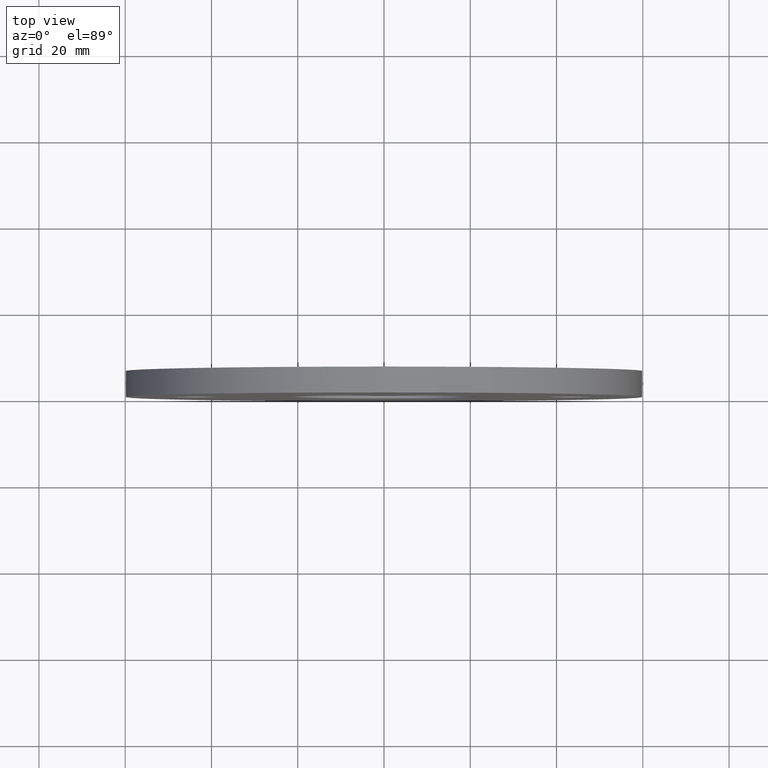
[diagram: clean part render]
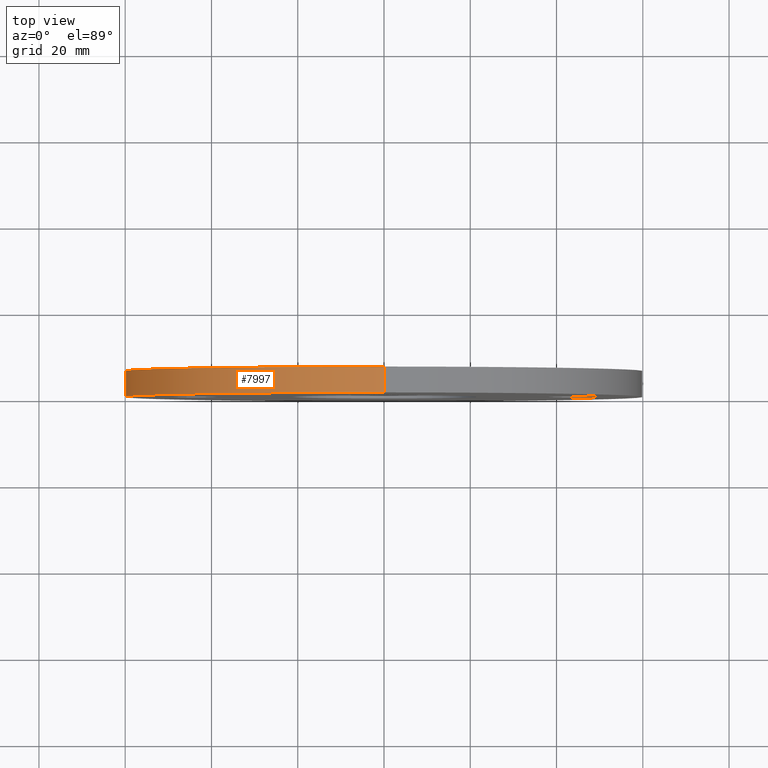
[diagram: same view with one face highlighted and labeled with its STEP entity id]
A machine part, top view. The second image highlights one B-rep face of the part: STEP entity #7997.
In plain terms, the highlighted cylindrical surface (partial cylindrical patch) has radius 60 mm, axis along (-0, -1, -0).
Its self-contained STEP definition (entity closure, byte-faithful):
#12 = CARTESIAN_POINT ( 'NONE',  ( 0.0000000000000000000, 0.0000000000000000000, -60.00000000000000000 ) ) ;
#102 = CARTESIAN_POINT ( 'NONE',  ( 7.347880794884118400E-015, 6.000000000000000000, 60.00000000000000000 ) ) ;
#156 = DIRECTION ( 'NONE',  ( 0.0000000000000000000, 1.000000000000000000, 0.0000000000000000000 ) ) ;
#219 = DIRECTION ( 'NONE',  ( 0.0000000000000000000, 0.0000000000000000000, 1.000000000000000000 ) ) ;
#281 = EDGE_CURVE ( 'NONE', #6442, #1045, #1391, .T. ) ;
#465 = DIRECTION ( 'NONE',  ( 0.0000000000000000000, 0.0000000000000000000, -1.000000000000000000 ) ) ;
#546 = EDGE_CURVE ( 'NONE', #3763, #6442, #7747, .T. ) ;
#790 = CARTESIAN_POINT ( 'NONE',  ( 0.0000000000000000000, 6.000000000000000000, -60.00000000000000000 ) ) ;
#1045 = VERTEX_POINT ( 'NONE', #5230 ) ;
#1391 = CIRCLE ( 'NONE', #4686, 60.00000000000000000 ) ;
#1603 = AXIS2_PLACEMENT_3D ( 'NONE', #2634, #156, #219 ) ;
#2544 = AXIS2_PLACEMENT_3D ( 'NONE', #8576, #4549, #465 ) ;
#2634 = CARTESIAN_POINT ( 'NONE',  ( 0.0000000000000000000, 6.000000000000000000, 0.0000000000000000000 ) ) ;
#3258 = DIRECTION ( 'NONE',  ( -0.0000000000000000000, -1.000000000000000000, -0.0000000000000000000 ) ) ;
#3559 = ORIENTED_EDGE ( 'NONE', *, *, #281, .T. ) ;
#3763 = VERTEX_POINT ( 'NONE', #5209 ) ;
#4050 = DIRECTION ( 'NONE',  ( -0.0000000000000000000, -1.000000000000000000, -0.0000000000000000000 ) ) ;
#4406 = ORIENTED_EDGE ( 'NONE', *, *, #9151, .F. ) ;
#4549 = DIRECTION ( 'NONE',  ( -0.0000000000000000000, -1.000000000000000000, -0.0000000000000000000 ) ) ;
#4686 = AXIS2_PLACEMENT_3D ( 'NONE', #8400, #9235, #5939 ) ;
#5209 = CARTESIAN_POINT ( 'NONE',  ( 0.0000000000000000000, 6.000000000000000000, -60.00000000000000000 ) ) ;
#5230 = CARTESIAN_POINT ( 'NONE',  ( 7.347880794884118400E-015, 0.0000000000000000000, 60.00000000000000000 ) ) ;
#5915 = EDGE_LOOP ( 'NONE', ( #10261, #4406, #10521, #3559 ) ) ;
#5939 = DIRECTION ( 'NONE',  ( 0.0000000000000000000, 0.0000000000000000000, 1.000000000000000000 ) ) ;
#6442 = VERTEX_POINT ( 'NONE', #12 ) ;
#7317 = VECTOR ( 'NONE', #3258, 1000.000000000000000 ) ;
#7444 = CIRCLE ( 'NONE', #1603, 60.00000000000000000 ) ;
#7509 = CARTESIAN_POINT ( 'NONE',  ( 7.347880794884118400E-015, 6.000000000000000000, 60.00000000000000000 ) ) ;
#7747 = LINE ( 'NONE', #790, #8913 ) ;
#7997 = ADVANCED_FACE ( 'NONE', ( #8277 ), #10569, .T. ) ;
#8176 = EDGE_CURVE ( 'NONE', #8619, #1045, #9641, .T. ) ;
#8277 = FACE_OUTER_BOUND ( 'NONE', #5915, .T. ) ;
#8400 = CARTESIAN_POINT ( 'NONE',  ( 0.0000000000000000000, 0.0000000000000000000, 0.0000000000000000000 ) ) ;
#8576 = CARTESIAN_POINT ( 'NONE',  ( 0.0000000000000000000, 6.000000000000000000, 0.0000000000000000000 ) ) ;
#8619 = VERTEX_POINT ( 'NONE', #7509 ) ;
#8913 = VECTOR ( 'NONE', #4050, 1000.000000000000000 ) ;
#9151 = EDGE_CURVE ( 'NONE', #3763, #8619, #7444, .T. ) ;
#9235 = DIRECTION ( 'NONE',  ( 0.0000000000000000000, 1.000000000000000000, 0.0000000000000000000 ) ) ;
#9641 = LINE ( 'NONE', #102, #7317 ) ;
#10261 = ORIENTED_EDGE ( 'NONE', *, *, #8176, .F. ) ;
#10521 = ORIENTED_EDGE ( 'NONE', *, *, #546, .T. ) ;
#10569 = CYLINDRICAL_SURFACE ( 'NONE', #2544, 60.00000000000000000 ) ;